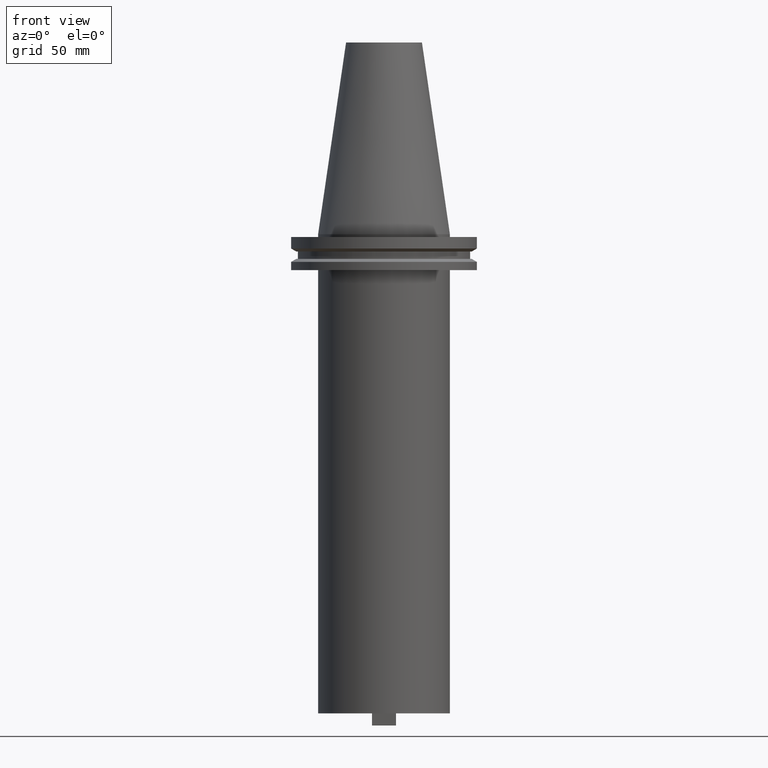
[diagram: clean part render]
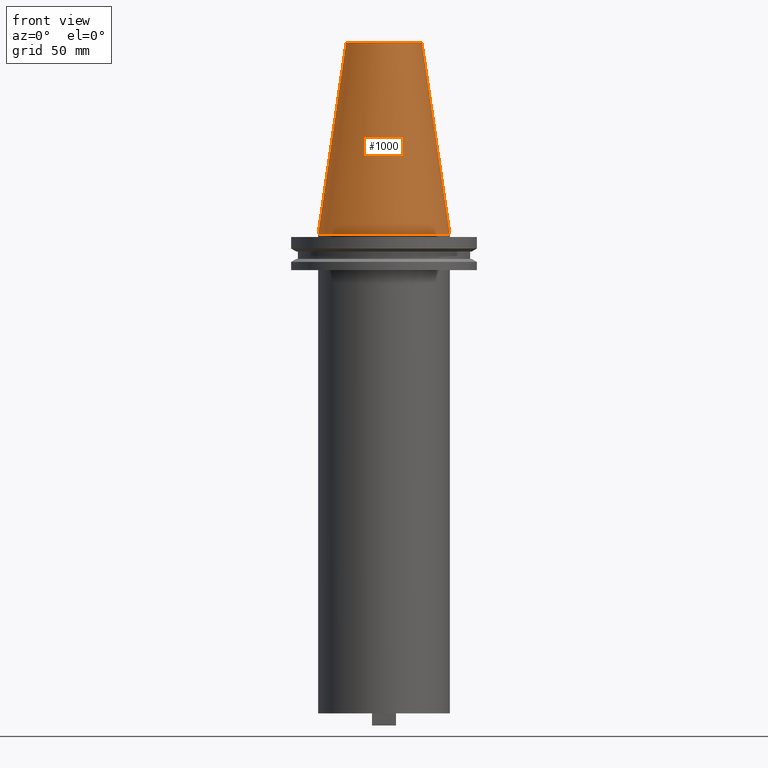
[diagram: same view with one face highlighted and labeled with its STEP entity id]
A machine part, front view. The second image highlights one B-rep face of the part: STEP entity #1000.
In plain terms, the highlighted conical surface has half-angle 8.297 deg.
Its self-contained STEP definition (entity closure, byte-faithful):
#19 = DIRECTION ( 'NONE',  ( 1.000000000000000000, 0.000000000000000000, 0.000000000000000000 ) ) ;
#44 = ORIENTED_EDGE ( 'NONE', *, *, #540, .T. ) ;
#81 = FACE_OUTER_BOUND ( 'NONE', #609, .T. ) ;
#117 = VECTOR ( 'NONE', #761, 999.9999999999998863 ) ;
#128 = AXIS2_PLACEMENT_3D ( 'NONE', #386, #232, #616 ) ;
#150 = CARTESIAN_POINT ( 'NONE',  ( 20.10819343178871321, 3.369811209154858606E-15, 101.5999999999999801 ) ) ;
#157 = CARTESIAN_POINT ( 'NONE',  ( 34.92499999999999005, 4.277078946022130098E-15, 0.000000000000000000 ) ) ;
#199 = DIRECTION ( 'NONE',  ( 1.000000000000000000, 0.000000000000000000, 0.000000000000000000 ) ) ;
#209 = EDGE_CURVE ( 'NONE', #959, #389, #913, .T. ) ;
#232 = DIRECTION ( 'NONE',  ( 0.000000000000000000, 0.000000000000000000, -1.000000000000000000 ) ) ;
#326 = ORIENTED_EDGE ( 'NONE', *, *, #495, .F. ) ;
#333 = CARTESIAN_POINT ( 'NONE',  ( 34.92499999999999005, 4.277078946022130098E-15, 0.000000000000000000 ) ) ;
#349 = AXIS2_PLACEMENT_3D ( 'NONE', #409, #712, #19 ) ;
#361 = VECTOR ( 'NONE', #867, 999.9999999999998863 ) ;
#363 = DIRECTION ( 'NONE',  ( -0.000000000000000000, -0.000000000000000000, 1.000000000000000000 ) ) ;
#385 = AXIS2_PLACEMENT_3D ( 'NONE', #509, #363, #199 ) ;
#386 = CARTESIAN_POINT ( 'NONE',  ( 0.000000000000000000, 0.000000000000000000, 0.000000000000000000 ) ) ;
#389 = VERTEX_POINT ( 'NONE', #333 ) ;
#409 = CARTESIAN_POINT ( 'NONE',  ( 0.000000000000000000, 0.000000000000000000, 101.5999999999999801 ) ) ;
#440 = CARTESIAN_POINT ( 'NONE',  ( -20.10819343178871321, 0.000000000000000000, 101.5999999999999801 ) ) ;
#468 = CONICAL_SURFACE ( 'NONE', #128, 34.92499999999999005, 0.1448138465474119452 ) ;
#495 = EDGE_CURVE ( 'NONE', #556, #959, #522, .T. ) ;
#509 = CARTESIAN_POINT ( 'NONE',  ( 0.000000000000000000, 0.000000000000000000, 0.000000000000000000 ) ) ;
#522 = CIRCLE ( 'NONE', #349, 20.10819343178871321 ) ;
#530 = CARTESIAN_POINT ( 'NONE',  ( -34.92499999999999005, 0.000000000000000000, 0.000000000000000000 ) ) ;
#540 = EDGE_CURVE ( 'NONE', #647, #389, #816, .T. ) ;
#556 = VERTEX_POINT ( 'NONE', #440 ) ;
#609 = EDGE_LOOP ( 'NONE', ( #762, #326, #776, #44 ) ) ;
#616 = DIRECTION ( 'NONE',  ( -1.000000000000000000, 0.000000000000000000, 0.000000000000000000 ) ) ;
#647 = VERTEX_POINT ( 'NONE', #843 ) ;
#692 = EDGE_CURVE ( 'NONE', #556, #647, #850, .T. ) ;
#712 = DIRECTION ( 'NONE',  ( -0.000000000000000000, -0.000000000000000000, 1.000000000000000000 ) ) ;
#761 = DIRECTION ( 'NONE',  ( -0.1443082272672999988, 0.000000000000000000, -0.9895327864921755756 ) ) ;
#762 = ORIENTED_EDGE ( 'NONE', *, *, #209, .F. ) ;
#776 = ORIENTED_EDGE ( 'NONE', *, *, #692, .T. ) ;
#816 = CIRCLE ( 'NONE', #385, 34.92499999999999005 ) ;
#843 = CARTESIAN_POINT ( 'NONE',  ( -34.92499999999999005, 0.000000000000000000, 0.000000000000000000 ) ) ;
#850 = LINE ( 'NONE', #530, #117 ) ;
#867 = DIRECTION ( 'NONE',  ( 0.1443082272672999988, 1.767266086135277066E-17, -0.9895327864921755756 ) ) ;
#913 = LINE ( 'NONE', #157, #361 ) ;
#959 = VERTEX_POINT ( 'NONE', #150 ) ;
#1000 = ADVANCED_FACE ( 'NONE', ( #81 ), #468, .T. ) ;